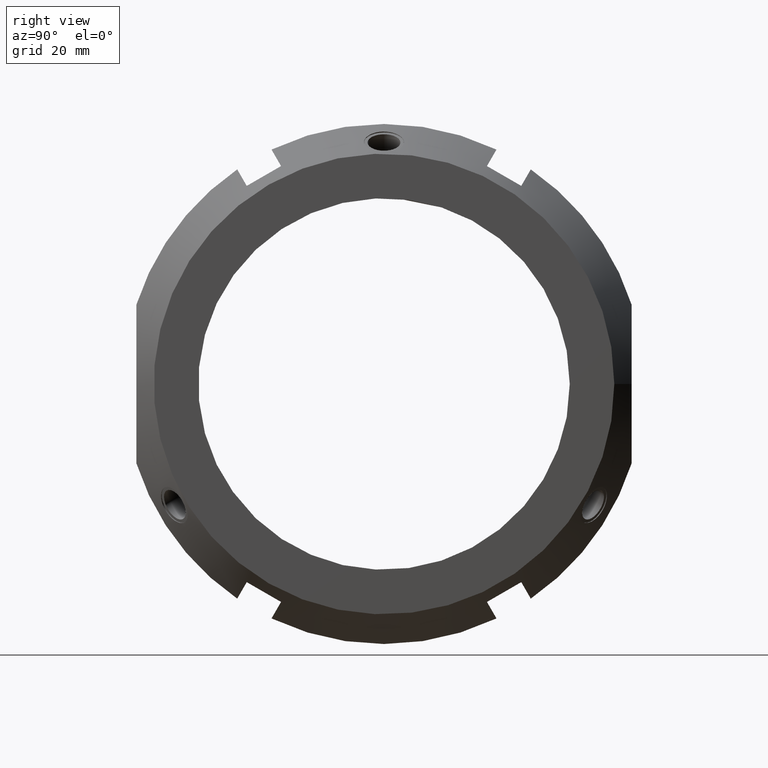
[diagram: clean part render]
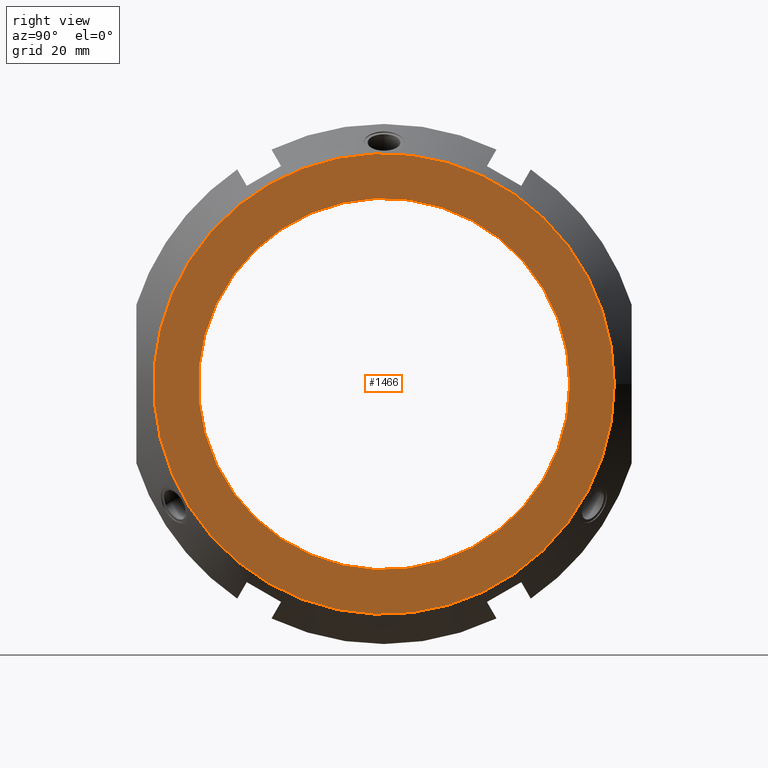
[diagram: same view with one face highlighted and labeled with its STEP entity id]
A machine part, right view. The second image highlights one B-rep face of the part: STEP entity #1466.
In plain terms, the highlighted planar face has unit normal (1, 0, 0).
Its self-contained STEP definition (entity closure, byte-faithful):
#938=CARTESIAN_POINT('',(27.999999999999989,46.5,0.0));
#939=VERTEX_POINT('',#938);
#940=CARTESIAN_POINT('',(27.999999999999989,0.0,0.0));
#941=DIRECTION('',(1.0,0.0,0.0));
#942=DIRECTION('',(0.0,1.0,0.0));
#943=AXIS2_PLACEMENT_3D('',#940,#941,#942);
#944=CIRCLE('',#943,46.5);
#945=EDGE_CURVE('',#939,#939,#944,.T.);
#1447=CARTESIAN_POINT('',(27.999999999999989,42.0,0.0));
#1448=DIRECTION('',(1.0,0.0,0.0));
#1449=DIRECTION('',(0.0,0.0,-1.0));
#1450=AXIS2_PLACEMENT_3D('',#1447,#1448,#1449);
#1451=PLANE('',#1450);
#1452=ORIENTED_EDGE('',*,*,#945,.T.);
#1453=EDGE_LOOP('',(#1452));
#1454=FACE_OUTER_BOUND('',#1453,.T.);
#1455=CARTESIAN_POINT('',(27.999999999999993,37.5,0.0));
#1456=VERTEX_POINT('',#1455);
#1457=CARTESIAN_POINT('',(27.999999999999993,0.0,0.0));
#1458=DIRECTION('',(1.0,0.0,0.0));
#1459=DIRECTION('',(0.0,1.0,0.0));
#1460=AXIS2_PLACEMENT_3D('',#1457,#1458,#1459);
#1461=CIRCLE('',#1460,37.5);
#1462=EDGE_CURVE('',#1456,#1456,#1461,.T.);
#1463=ORIENTED_EDGE('',*,*,#1462,.F.);
#1464=EDGE_LOOP('',(#1463));
#1465=FACE_BOUND('',#1464,.T.);
#1466=ADVANCED_FACE('',(#1454,#1465),#1451,.T.);